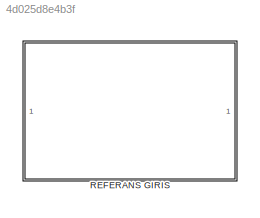
MODEL slx_4d025d8e4b3f
KIND model
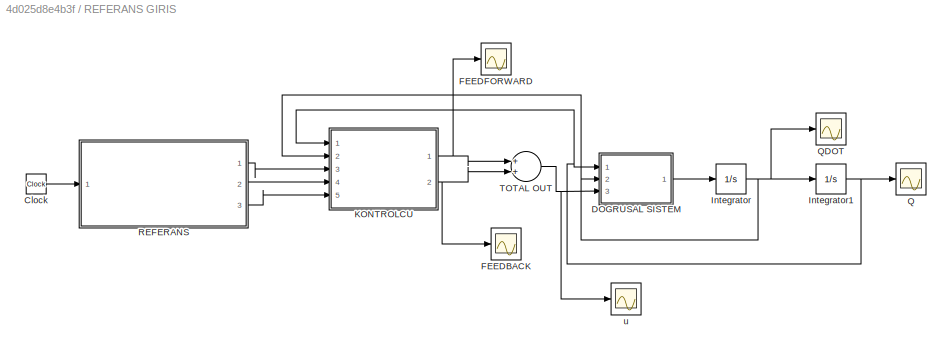
BLOCK [SubSystem] REFERANS GIRIS
  FunctionWithSeparateData = off
  MaskHideContents = off
  MinAlgLoopOccurrences = off
  Opaque = off
  Ports = []
  PropExecContextOutsideSubsystem = off
  RTWSystemCode = Auto
  RequestExecContextInheritance = off
BLOCK [Clock] REFERANS GIRIS/Clock
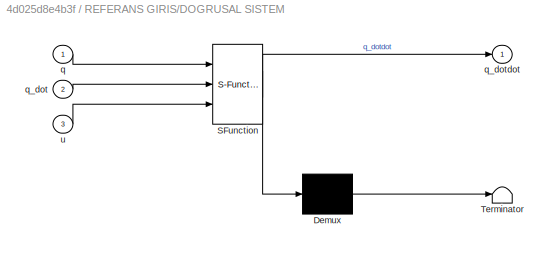
BLOCK [SubSystem] REFERANS GIRIS/DOGRUSAL SISTEM
  ErrorFcn = Stateflow.Translate.translate
  FunctionWithSeparateData = off
  MaskHideContents = off
  MinAlgLoopOccurrences = off
  Opaque = off
  PermitHierarchicalResolution = ExplicitOnly
  Ports = [3, 1]
  PropExecContextOutsideSubsystem = off
  RTWSystemCode = Auto
  RequestExecContextInheritance = off
  SFBlockType = MATLAB Function
  TreatAsAtomicUnit = on
BLOCK [Demux] REFERANS GIRIS/DOGRUSAL SISTEM/ Demux 
  Outputs = 1
  Ports = [1, 1]
BLOCK [S-Function] REFERANS GIRIS/DOGRUSAL SISTEM/ SFunction 
  EnableBusSupport = on
  FunctionName = sf_sfun
  PortCounts = [3 2]
  Ports = [3, 2]
  Tag = Stateflow S-Function ODEV1B 3
BLOCK [Terminator] REFERANS GIRIS/DOGRUSAL SISTEM/ Terminator 
BLOCK [Inport] REFERANS GIRIS/DOGRUSAL SISTEM/q
  IconDisplay = Port number
BLOCK [Inport] REFERANS GIRIS/DOGRUSAL SISTEM/q_dot
  IconDisplay = Port number
  Port = 2
BLOCK [Outport] REFERANS GIRIS/DOGRUSAL SISTEM/q_dotdot
  IconDisplay = Port number
BLOCK [Inport] REFERANS GIRIS/DOGRUSAL SISTEM/u
  IconDisplay = Port number
  Port = 3
BLOCK [Scope] REFERANS GIRIS/FEEDBACK
  DataFormat = StructureWithTime
  Floating = off
  NumInputPorts = 1
  Ports = [1]
  SampleTime = 0
  SaveName = ScopeData1
  ShowLegends = off
  TimeRange = 10
  YMax = 35
  YMin = -170
  ZoomMode = xonly
BLOCK [Scope] REFERANS GIRIS/FEEDFORWARD
  DataFormat = StructureWithTime
  Floating = off
  NumInputPorts = 1
  Ports = [1]
  SampleTime = 0
  ShowLegends = off
BLOCK [Integrator] REFERANS GIRIS/Integrator
  Ports = [1, 1]
BLOCK [Integrator] REFERANS GIRIS/Integrator1
  Ports = [1, 1]
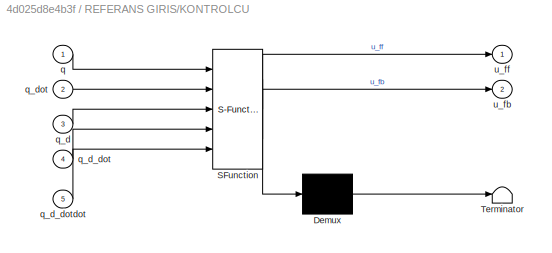
BLOCK [SubSystem] REFERANS GIRIS/KONTROLCU
  ErrorFcn = Stateflow.Translate.translate
  FunctionWithSeparateData = off
  MaskHideContents = off
  MinAlgLoopOccurrences = off
  Opaque = off
  PermitHierarchicalResolution = ExplicitOnly
  Ports = [5, 2]
  PropExecContextOutsideSubsystem = off
  RTWSystemCode = Auto
  RequestExecContextInheritance = off
  SFBlockType = MATLAB Function
  TreatAsAtomicUnit = on
BLOCK [Demux] REFERANS GIRIS/KONTROLCU/ Demux 
  Outputs = 1
  Ports = [1, 1]
BLOCK [S-Function] REFERANS GIRIS/KONTROLCU/ SFunction 
  EnableBusSupport = on
  FunctionName = sf_sfun
  PortCounts = [5 3]
  Ports = [5, 3]
  Tag = Stateflow S-Function ODEV1B 1
BLOCK [Terminator] REFERANS GIRIS/KONTROLCU/ Terminator 
BLOCK [Inport] REFERANS GIRIS/KONTROLCU/q
  IconDisplay = Port number
BLOCK [Inport] REFERANS GIRIS/KONTROLCU/q_d
  IconDisplay = Port number
  Port = 3
BLOCK [Inport] REFERANS GIRIS/KONTROLCU/q_d_dot
  IconDisplay = Port number
  Port = 4
BLOCK [Inport] REFERANS GIRIS/KONTROLCU/q_d_dotdot
  IconDisplay = Port number
  Port = 5
BLOCK [Inport] REFERANS GIRIS/KONTROLCU/q_dot
  IconDisplay = Port number
  Port = 2
BLOCK [Outport] REFERANS GIRIS/KONTROLCU/u_fb
  IconDisplay = Port number
  Port = 2
BLOCK [Outport] REFERANS GIRIS/KONTROLCU/u_ff
  IconDisplay = Port number
BLOCK [Scope] REFERANS GIRIS/Q
  DataFormat = StructureWithTime
  Floating = off
  NumInputPorts = 1
  Ports = [1]
  SampleTime = 0
  SaveName = ScopeData3
  ShowLegends = off
  TimeRange = 10
BLOCK [Scope] REFERANS GIRIS/QDOT
  DataFormat = StructureWithTime
  Floating = off
  NumInputPorts = 1
  Ports = [1]
  SampleTime = 0
  SaveName = ScopeData4
  ShowLegends = off
  TimeRange = 10
  YMax = 8
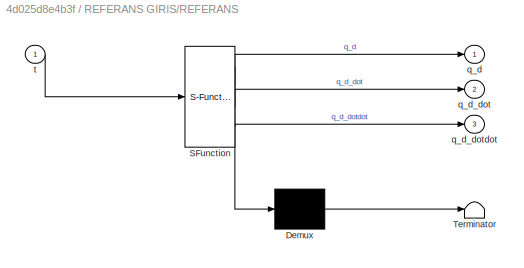
BLOCK [SubSystem] REFERANS GIRIS/REFERANS
  ErrorFcn = Stateflow.Translate.translate
  FunctionWithSeparateData = off
  MaskHideContents = off
  MinAlgLoopOccurrences = off
  Opaque = off
  PermitHierarchicalResolution = ExplicitOnly
  Ports = [1, 3]
  PropExecContextOutsideSubsystem = off
  RTWSystemCode = Auto
  RequestExecContextInheritance = off
  SFBlockType = MATLAB Function
  TreatAsAtomicUnit = on
BLOCK [Demux] REFERANS GIRIS/REFERANS/ Demux 
  Outputs = 1
  Ports = [1, 1]
BLOCK [S-Function] REFERANS GIRIS/REFERANS/ SFunction 
  EnableBusSupport = on
  FunctionName = sf_sfun
  PortCounts = [1 4]
  Ports = [1, 4]
  Tag = Stateflow S-Function ODEV1B 2
BLOCK [Terminator] REFERANS GIRIS/REFERANS/ Terminator 
BLOCK [Outport] REFERANS GIRIS/REFERANS/q_d
  IconDisplay = Port number
BLOCK [Outport] REFERANS GIRIS/REFERANS/q_d_dot
  IconDisplay = Port number
  Port = 2
BLOCK [Outport] REFERANS GIRIS/REFERANS/q_d_dotdot
  IconDisplay = Port number
  Port = 3
BLOCK [Inport] REFERANS GIRIS/REFERANS/t
  IconDisplay = Port number
BLOCK [Sum] REFERANS GIRIS/TOTAL OUT
  InputSameDT = off
  OutDataTypeStr = Inherit: Inherit via internal rule
  Ports = [2, 1]
  SaturateOnIntegerOverflow = off
BLOCK [Scope] REFERANS GIRIS/u
  DataFormat = StructureWithTime
  Floating = off
  NumInputPorts = 1
  Ports = [1]
  SampleTime = 0
  SaveName = ScopeData2
  ShowLegends = off
  YMax = 40
  YMin = -170
LINE REFERANS GIRIS/Clock:1 -> REFERANS GIRIS/REFERANS:1
LINE REFERANS GIRIS/DOGRUSAL SISTEM:1 -> REFERANS GIRIS/Integrator:1
NET REFERANS GIRIS/Integrator1:1 -> REFERANS GIRIS/DOGRUSAL SISTEM:1, REFERANS GIRIS/KONTROLCU:1, REFERANS GIRIS/Q:1
NET REFERANS GIRIS/Integrator:1 -> REFERANS GIRIS/DOGRUSAL SISTEM:2, REFERANS GIRIS/Integrator1:1, REFERANS GIRIS/KONTROLCU:2, REFERANS GIRIS/QDOT:1
NET REFERANS GIRIS/KONTROLCU:1 -> REFERANS GIRIS/FEEDFORWARD:1, REFERANS GIRIS/TOTAL OUT:1
NET REFERANS GIRIS/KONTROLCU:2 -> REFERANS GIRIS/FEEDBACK:1, REFERANS GIRIS/TOTAL OUT:2
LINE REFERANS GIRIS/REFERANS:1 -> REFERANS GIRIS/KONTROLCU:3
LINE REFERANS GIRIS/REFERANS:2 -> REFERANS GIRIS/KONTROLCU:4
LINE REFERANS GIRIS/REFERANS:3 -> REFERANS GIRIS/KONTROLCU:5
NET REFERANS GIRIS/TOTAL OUT:1 -> REFERANS GIRIS/DOGRUSAL SISTEM:3, REFERANS GIRIS/u:1
note: NET lines group one-source signal fan-out (src -> all destinations, sorted); 1:1 wires keep LINE
